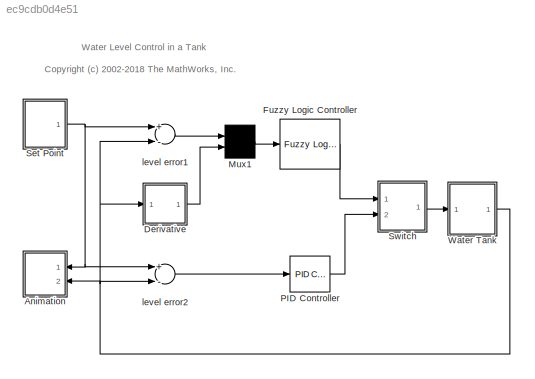
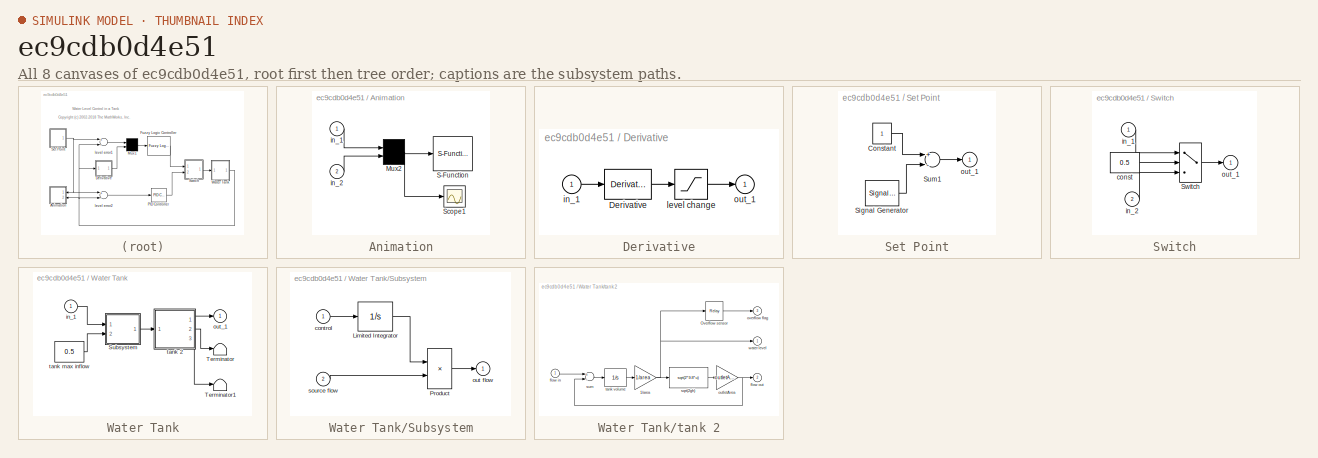
[diagram: thumbnail index - all 8 canvases of the model, root first then tree order]
MODEL slx_ec9cdb0d4e51
KIND model
CONFIG AbsTol = 1e-6
CONFIG EnableMultiTasking = off
CONFIG FixedStep = auto
CONFIG MaxStep = 0.2
CONFIG MinStep = auto
CONFIG PreLoadFcn = tank2=readfis('tank2');
CONFIG RelTol = 1e-3
CONFIG SampleTimeConstraint = Unconstrained
CONFIG Solver = ode23
CONFIG SolverName = ode23
CONFIG StartTime = 0
CONFIG StopTime = 10000
BLOCK [SubSystem] Animation
  Ports = [2]
  RequestExecContextInheritance = off
  ShowPortLabels = none
BLOCK [Mux] Animation/Mux2
  Inputs = 2
  Ports = [2, 1]
BLOCK [S-Function] Animation/S-Function
  EnableBusSupport = off
  FunctionName = animtank
  Parameters = 1
  Ports = [1]
  SFcnIsStateOwnerBlock = off
  SFunctionDeploymentMode = off
BLOCK [Scope] Animation/Scope1
  Floating = off
  NumInputPorts = 1
  Ports = [1]
  ScopeSpecificationString = C++SS(StrPVP('Location','[68, 146, 342, 467]'),StrPVP('Open','off'),StrPVP('TickLabels','on'),MxPVP('AxesTitles',53,'struct(''axes1'',''%<SignalLabel>'')'),StrPVP('TimeRange','200.000000'),StrPVP('YMin','-2.000000'),StrPVP('YMax','2.000000'),StrPVP('DataFormat','Array'),StrPVP('BlockParamSampleTime','0'),StrPVP('LimitDataPoints','on'),StrPVP('Decimation','1'),StrPVP('BlockParamSampleInput','off'))
BLOCK [Inport] Animation/in_1
  IconDisplay = Port number
BLOCK [Inport] Animation/in_2
  IconDisplay = Port number
  Port = 2
BLOCK [SubSystem] Derivative
  Ports = [1, 1]
  RequestExecContextInheritance = off
  ShowPortLabels = none
BLOCK [Derivative] Derivative/Derivative
BLOCK [Inport] Derivative/in_1
  IconDisplay = Port number
BLOCK [Saturate] Derivative/level change
  InputPortMap = u0
  LowerLimit = -0.1
  Ports = [1, 1]
  UpperLimit = 0.1
BLOCK [Outport] Derivative/out_1
  IconDisplay = Port number
BLOCK [Reference] Fuzzy Logic Controller  REF=fuzblock/Fuzzy Logic   (lib defined in mdl_858b3b3e7478)
Controller
  Ports = [1, 1]
  SourceBlock = fuzblock/Fuzzy Logic \nController
  SourceProductBaseCode = FL
  SourceProductName = Fuzzy Logic Toolbox
  SourceType = Fuzzy Inference System
BLOCK [Mux] Mux1
  Inputs = 2
  Ports = [2, 1]
BLOCK [Reference] PID Controller  REF=simulink/Continuous/PID Controller
  Ports = [1, 1]
  SourceBlock = simulink/Continuous/PID Controller
  SourceProductBaseCode = SL
  SourceProductName = Simulink
  SourceType = PID 1dof
BLOCK [SubSystem] Set Point
  Ports = [0, 1]
  RequestExecContextInheritance = off
  ShowPortLabels = none
BLOCK [Constant] Set Point/Constant
BLOCK [SignalGenerator] Set Point/Signal Generator
  Amplitude = 0.500000
  Frequency = 0.250000
  Ports = [0, 1]
  Units = rad/sec
  WaveForm = square
BLOCK [Sum] Set Point/Sum1
  Inputs = +-
  Ports = [2, 1]
BLOCK [Outport] Set Point/out_1
  IconDisplay = Port number
BLOCK [SubSystem] Switch
  Ports = [2, 1]
  RequestExecContextInheritance = off
  ShowPortLabels = none
BLOCK [Switch] Switch/Switch
BLOCK [Constant] Switch/const
  Value = 0.5
BLOCK [Inport] Switch/in_1
  IconDisplay = Port number
BLOCK [Inport] Switch/in_2
  IconDisplay = Port number
  Port = 2
BLOCK [Outport] Switch/out_1
  IconDisplay = Port number
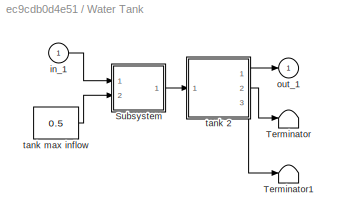
BLOCK [SubSystem] Water Tank
  Ports = [1, 1]
  RequestExecContextInheritance = off
  ShowPortLabels = none
BLOCK [SubSystem] Water Tank/Subsystem
  Ports = [2, 1]
  RequestExecContextInheritance = off
  ShowPortLabels = none
BLOCK [Integrator] Water Tank/Subsystem/Limited Integrator
  InitialCondition = InitialPosition
  LimitOutput = on
  LowerSaturationLimit = 0
  Ports = [1, 1]
  UpperSaturationLimit = 1
BLOCK [Product] Water Tank/Subsystem/Product
  Ports = [2, 1]
BLOCK [Inport] Water Tank/Subsystem/control
  IconDisplay = Port number
BLOCK [Outport] Water Tank/Subsystem/out flow
  IconDisplay = Port number
BLOCK [Inport] Water Tank/Subsystem/source flow
  IconDisplay = Port number
  Port = 2
BLOCK [Terminator] Water Tank/Terminator
BLOCK [Terminator] Water Tank/Terminator1
BLOCK [Inport] Water Tank/in_1
  IconDisplay = Port number
BLOCK [Outport] Water Tank/out_1
  IconDisplay = Port number
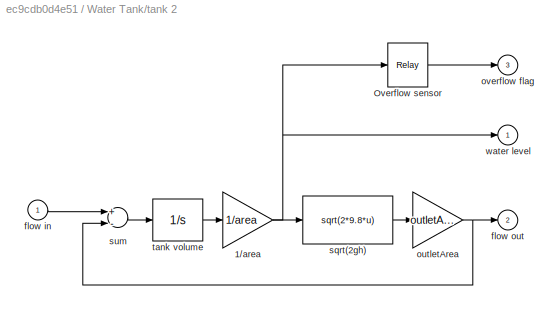
BLOCK [SubSystem] Water Tank/tank 2
  Ports = [1, 3]
  RequestExecContextInheritance = off
  ShowPortLabels = none
BLOCK [Gain] Water Tank/tank 2/1//area
  Gain = 1/area
BLOCK [Relay] Water Tank/tank 2/Overflow sensor
  OffSwitchValue = ht - overflowLimit
  OnSwitchValue = ht - overflowLimit
BLOCK [Inport] Water Tank/tank 2/flow in
  IconDisplay = Port number
BLOCK [Outport] Water Tank/tank 2/flow out
  IconDisplay = Port number
  Port = 2
BLOCK [Gain] Water Tank/tank 2/outletArea
  Gain = outletArea
BLOCK [Outport] Water Tank/tank 2/overflow flag
  IconDisplay = Port number
  Port = 3
BLOCK [Fcn] Water Tank/tank 2/sqrt(2gh)
  Expr = sqrt(2*9.8*u)
BLOCK [Sum] Water Tank/tank 2/sum
  Inputs = +-
  Ports = [2, 1]
BLOCK [Integrator] Water Tank/tank 2/tank volume
  InitialCondition = initialHt * area
  LimitOutput = on
  LowerSaturationLimit = 0
  Ports = [1, 1]
  UpperSaturationLimit = ht * area
BLOCK [Outport] Water Tank/tank 2/water level
  IconDisplay = Port number
BLOCK [Constant] Water Tank/tank max inflow
  Value = 0.5
BLOCK [Sum] level error1
  Inputs = +-
  Ports = [2, 1]
BLOCK [Sum] level error2
  Inputs = +-
  Ports = [2, 1]
ANNOTATION (root): <copyright redacted>
ANNOTATION (root): Water Level Control in a Tank
NET Animation/Mux2:1 -> Animation/S-Function:1, Animation/Scope1:1
LINE Animation/in_1:1 -> Animation/Mux2:1
LINE Animation/in_2:1 -> Animation/Mux2:2
LINE Derivative/Derivative:1 -> Derivative/level change:1
LINE Derivative/in_1:1 -> Derivative/Derivative:1
LINE Derivative/level change:1 -> Derivative/out_1:1
LINE Derivative:1 -> Mux1:2
LINE Fuzzy Logic Controller:1 -> Switch:1
LINE Mux1:1 -> Fuzzy Logic Controller:1
LINE PID Controller:1 -> Switch:2
LINE Set Point/Constant:1 -> Set Point/Sum1:1
LINE Set Point/Signal Generator:1 -> Set Point/Sum1:2
LINE Set Point/Sum1:1 -> Set Point/out_1:1
NET Set Point:1 -> Animation:1, level error1:1, level error2:1
LINE Switch/Switch:1 -> Switch/out_1:1
LINE Switch/const:1 -> Switch/Switch:2
LINE Switch/in_1:1 -> Switch/Switch:1
LINE Switch/in_2:1 -> Switch/Switch:3
LINE Switch:1 -> Water Tank:1
LINE Water Tank/Subsystem/Limited Integrator:1 -> Water Tank/Subsystem/Product:1
LINE Water Tank/Subsystem/Product:1 -> Water Tank/Subsystem/out flow:1
LINE Water Tank/Subsystem/control:1 -> Water Tank/Subsystem/Limited Integrator:1
LINE Water Tank/Subsystem/source flow:1 -> Water Tank/Subsystem/Product:2
LINE Water Tank/Subsystem:1 -> Water Tank/tank 2:1
LINE Water Tank/in_1:1 -> Water Tank/Subsystem:1
NET Water Tank/tank 2/1//area:1 -> Water Tank/tank 2/Overflow sensor:1, Water Tank/tank 2/sqrt(2gh):1, Water Tank/tank 2/water level:1
LINE Water Tank/tank 2/Overflow sensor:1 -> Water Tank/tank 2/overflow flag:1
LINE Water Tank/tank 2/flow in:1 -> Water Tank/tank 2/sum:1
NET Water Tank/tank 2/outletArea:1 -> Water Tank/tank 2/flow out:1, Water Tank/tank 2/sum:2
LINE Water Tank/tank 2/sqrt(2gh):1 -> Water Tank/tank 2/outletArea:1
LINE Water Tank/tank 2/sum:1 -> Water Tank/tank 2/tank volume:1
LINE Water Tank/tank 2/tank volume:1 -> Water Tank/tank 2/1//area:1
LINE Water Tank/tank 2:1 -> Water Tank/out_1:1
LINE Water Tank/tank 2:2 -> Water Tank/Terminator:1
LINE Water Tank/tank 2:3 -> Water Tank/Terminator1:1
LINE Water Tank/tank max inflow:1 -> Water Tank/Subsystem:2
NET Water Tank:1 -> Animation:2, Derivative:1, level error1:2, level error2:2
LINE level error1:1 -> Mux1:1
LINE level error2:1 -> PID Controller:1
note: NET lines group one-source signal fan-out (src -> all destinations, sorted); 1:1 wires keep LINE
